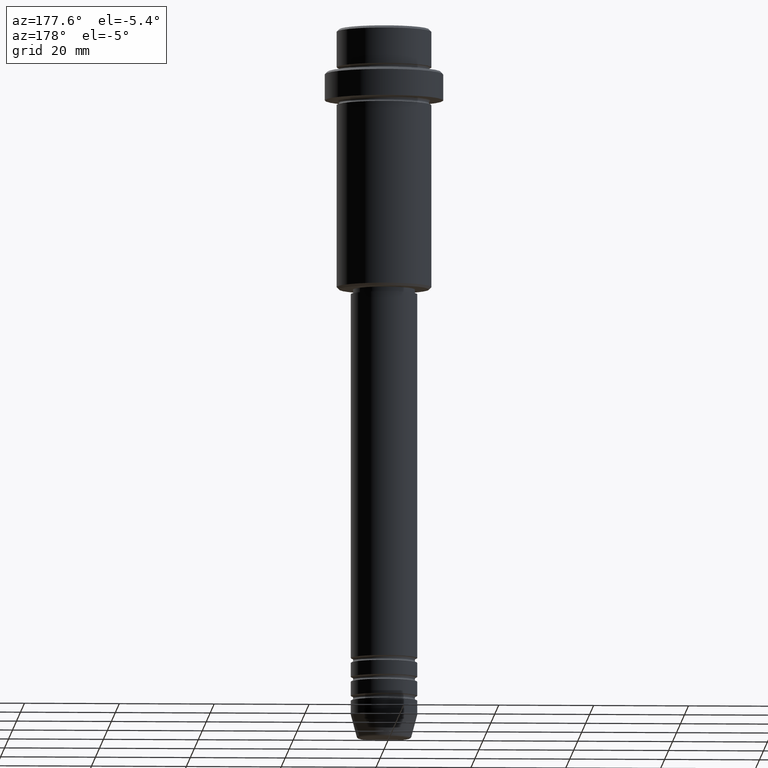
[diagram: clean part render]
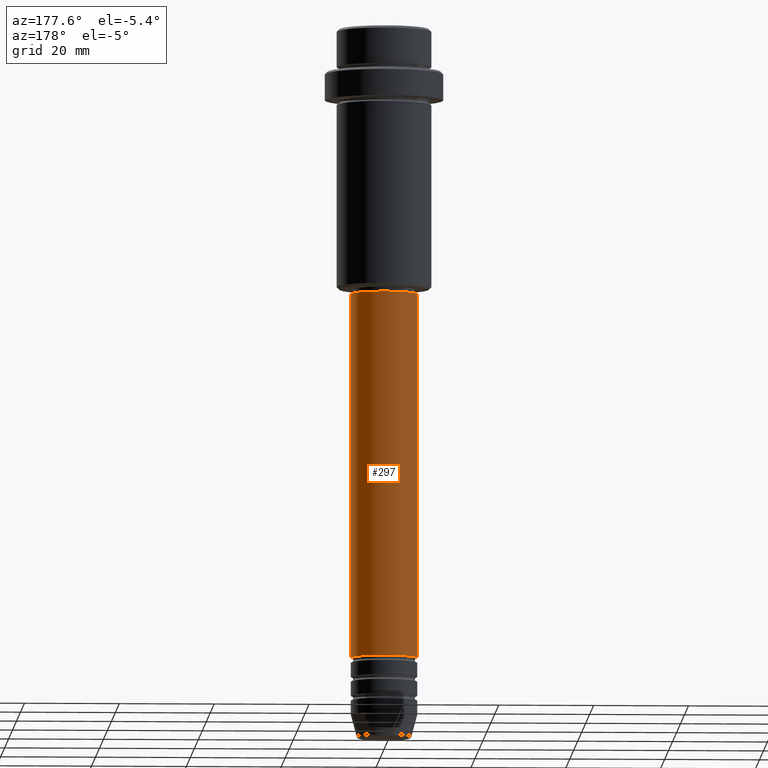
[diagram: same view with one face highlighted and labeled with its STEP entity id]
A machine part, auxiliary view. The second image highlights one B-rep face of the part: STEP entity #297.
In plain terms, the highlighted cylindrical surface (edge-blend (fillet) strip) has radius 7 mm, axis along (-0, -0, 1).
Its self-contained STEP definition (entity closure, byte-faithful):
#9 = VERTEX_POINT ( 'NONE', #949 ) ;
#43 = CARTESIAN_POINT ( 'NONE',  ( -7.000000000000000000, 8.572527594031473190E-16, 0.000000000000000000 ) ) ;
#52 = EDGE_CURVE ( 'NONE', #1027, #9, #694, .T. ) ;
#158 = CIRCLE ( 'NONE', #1220, 7.000000000000000000 ) ;
#161 = DIRECTION ( 'NONE',  ( 1.000000000000000000, 0.000000000000000000, 0.000000000000000000 ) ) ;
#219 = ORIENTED_EDGE ( 'NONE', *, *, #52, .T. ) ;
#286 = DIRECTION ( 'NONE',  ( -0.000000000000000000, -0.000000000000000000, 1.000000000000000000 ) ) ;
#297 = ADVANCED_FACE ( 'NONE', ( #1231 ), #475, .T. ) ;
#299 = ORIENTED_EDGE ( 'NONE', *, *, #1128, .F. ) ;
#318 = VECTOR ( 'NONE', #917, 1000.000000000000000 ) ;
#439 = LINE ( 'NONE', #871, #690 ) ;
#448 = DIRECTION ( 'NONE',  ( -0.000000000000000000, -0.000000000000000000, 1.000000000000000000 ) ) ;
#453 = DIRECTION ( 'NONE',  ( 1.000000000000000000, 0.000000000000000000, 0.000000000000000000 ) ) ;
#475 = CYLINDRICAL_SURFACE ( 'NONE', #975, 7.000000000000000000 ) ;
#528 = ORIENTED_EDGE ( 'NONE', *, *, #980, .T. ) ;
#586 = CARTESIAN_POINT ( 'NONE',  ( -7.000000000000000000, 8.572527594031473190E-16, -55.99999999999997158 ) ) ;
#644 = DIRECTION ( 'NONE',  ( -0.000000000000000000, -0.000000000000000000, 1.000000000000000000 ) ) ;
#690 = VECTOR ( 'NONE', #644, 1000.000000000000000 ) ;
#694 = CIRCLE ( 'NONE', #892, 7.000000000000000000 ) ;
#733 = DIRECTION ( 'NONE',  ( -0.000000000000000000, -0.000000000000000000, 1.000000000000000000 ) ) ;
#755 = ORIENTED_EDGE ( 'NONE', *, *, #1296, .F. ) ;
#757 = VERTEX_POINT ( 'NONE', #1192 ) ;
#871 = CARTESIAN_POINT ( 'NONE',  ( 7.000000000000000000, 0.000000000000000000, 0.000000000000000000 ) ) ;
#892 = AXIS2_PLACEMENT_3D ( 'NONE', #1042, #733, #1162 ) ;
#917 = DIRECTION ( 'NONE',  ( -0.000000000000000000, -0.000000000000000000, 1.000000000000000000 ) ) ;
#949 = CARTESIAN_POINT ( 'NONE',  ( -7.000000000000000000, 8.572527594031473190E-16, -132.9999999999998579 ) ) ;
#975 = AXIS2_PLACEMENT_3D ( 'NONE', #1126, #448, #453 ) ;
#980 = EDGE_CURVE ( 'NONE', #9, #1334, #1023, .T. ) ;
#1023 = LINE ( 'NONE', #43, #318 ) ;
#1027 = VERTEX_POINT ( 'NONE', #1268 ) ;
#1042 = CARTESIAN_POINT ( 'NONE',  ( 0.000000000000000000, 0.000000000000000000, -132.9999999999998579 ) ) ;
#1126 = CARTESIAN_POINT ( 'NONE',  ( 0.000000000000000000, 0.000000000000000000, 0.000000000000000000 ) ) ;
#1128 = EDGE_CURVE ( 'NONE', #1027, #757, #439, .T. ) ;
#1162 = DIRECTION ( 'NONE',  ( 1.000000000000000000, 0.000000000000000000, 0.000000000000000000 ) ) ;
#1192 = CARTESIAN_POINT ( 'NONE',  ( 7.000000000000000000, 0.000000000000000000, -55.99999999999997158 ) ) ;
#1220 = AXIS2_PLACEMENT_3D ( 'NONE', #1353, #286, #161 ) ;
#1231 = FACE_OUTER_BOUND ( 'NONE', #1266, .T. ) ;
#1266 = EDGE_LOOP ( 'NONE', ( #219, #528, #755, #299 ) ) ;
#1268 = CARTESIAN_POINT ( 'NONE',  ( 7.000000000000000000, 0.000000000000000000, -132.9999999999998579 ) ) ;
#1296 = EDGE_CURVE ( 'NONE', #757, #1334, #158, .T. ) ;
#1334 = VERTEX_POINT ( 'NONE', #586 ) ;
#1353 = CARTESIAN_POINT ( 'NONE',  ( 0.000000000000000000, 0.000000000000000000, -55.99999999999997158 ) ) ;